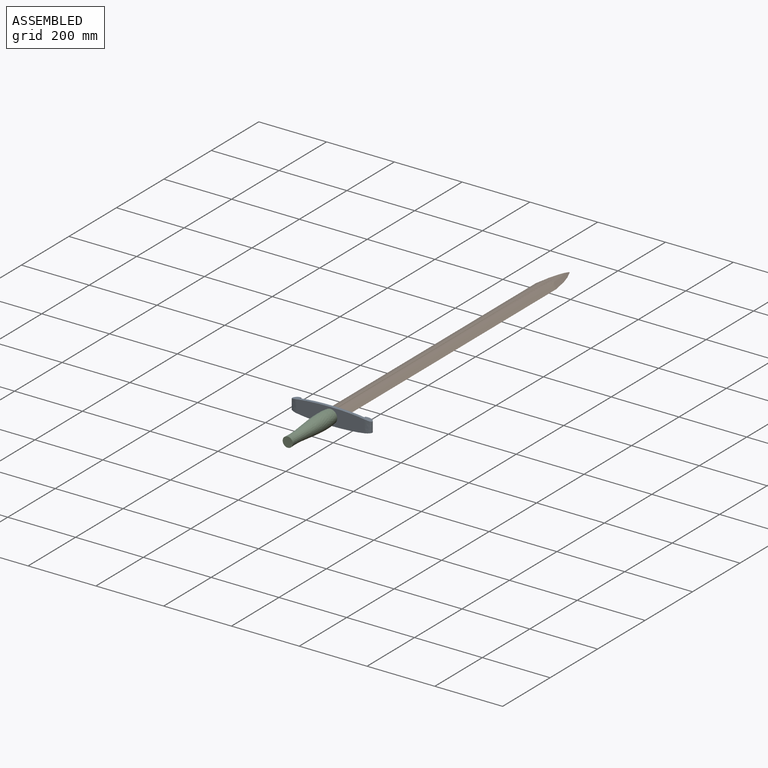
[diagram: assembled view]
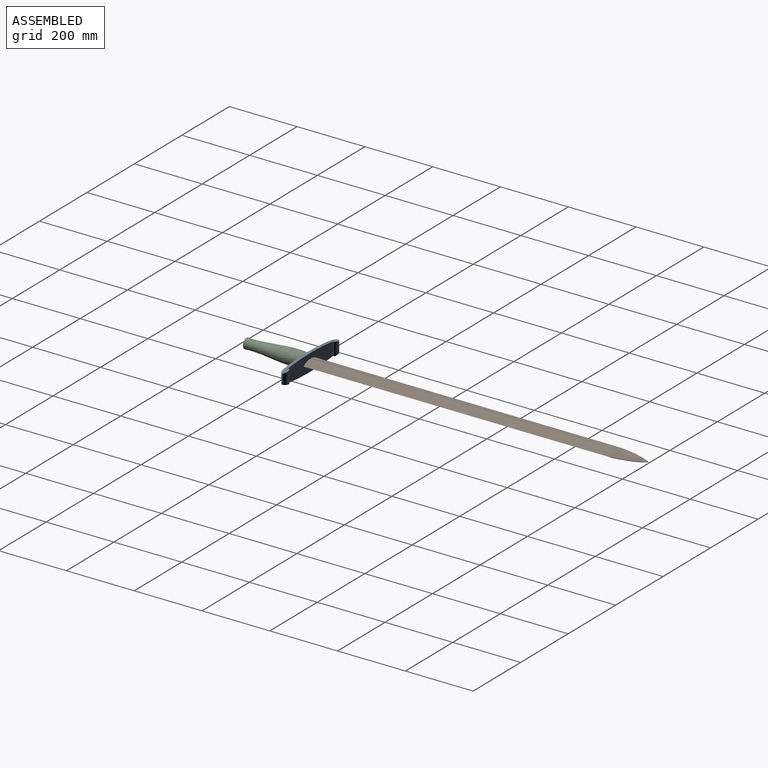
[diagram: assembled view, second angle]
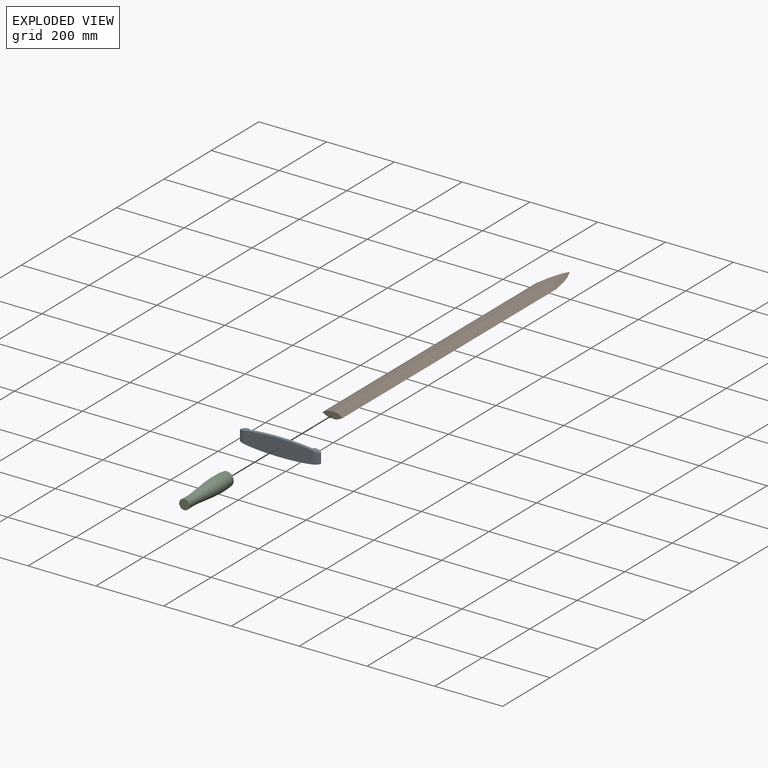
[diagram: exploded view]
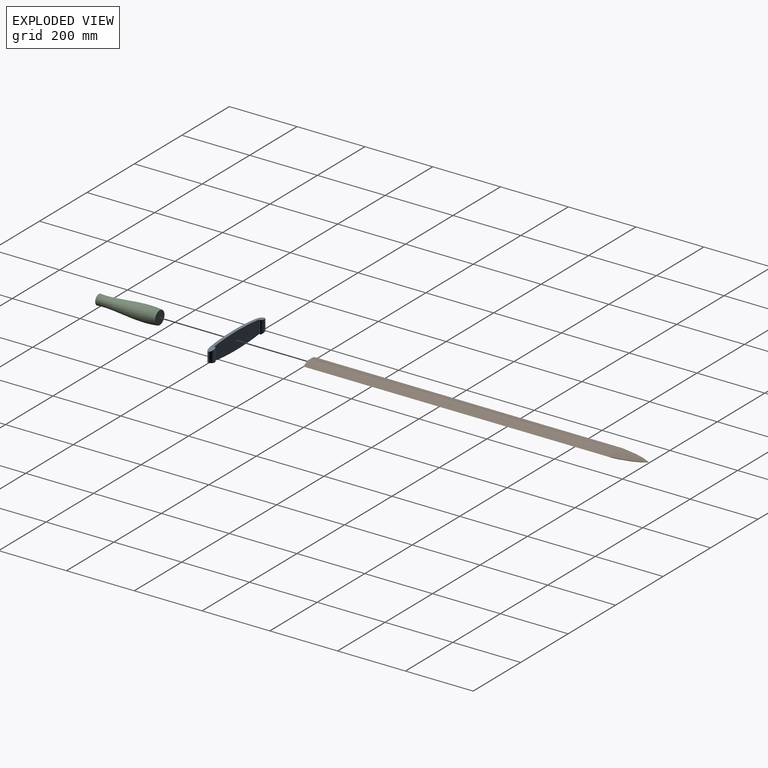
[diagram: exploded view, second angle]
ASSEMBLY  parts=3 mates=2
PART A: 8 faces, bbox 236.9x15.9x50 mm
  f0: plane 201.69x50mm, normal (0,-1,0), area 9192.5mm2, adj f1,f3,f4,f5,f6,f7
  f1: extruded ~38.87x24.64mm, area 1940.8mm2, adj f0,f2,f3,f4
  f2: plane 197.49x50mm, normal (0,1,0), area 9038mm2, adj f1,f3,f4,f5,f6,f7
  f3: extruded ~118.47x15.86mm, area 1155.6mm2, adj f0,f1,f2,f6
  f4: extruded ~118.47x15.86mm, area 1155.6mm2, adj f0,f1,f2,f7
  f5: extruded ~38.87x24.64mm, area 1940.8mm2, adj f0,f2,f6,f7
  f6: extruded ~118.47x15.86mm, area 1155.6mm2, adj f0,f2,f3,f5
  f7: extruded ~118.47x15.86mm, area 1155.6mm2, adj f0,f2,f4,f5
PART B: 27 faces, bbox 60x33.1x1001.1 mm
  f0: extruded ~915.91x27mm, area 26457.1mm2, adj f1,f2,f3,f7,f8,f20
  f1: extruded ~938.09x3mm, area 3451.7mm2, adj f0,f2,f5,f7
  f2: plane 60x20mm, normal (0,0,-1), area 800.6mm2, adj f0,f1,f4,f5,f8,f9,f11,f12
  f3: bspline ~104.37x54.14mm, area 1039.9mm2, adj f0,f10,f20,f22
  f4: extruded ~915.91x27mm, area 26457.1mm2, adj f2,f5,f6,f7,f11,f19
  f5: extruded ~938.09x3mm, area 3451.7mm2, adj f1,f2,f4,f7
  f6: bspline ~104.37x54.14mm, area 1039.9mm2, adj f4,f13,f19,f22
  f7: extruded ~77.1x21.82mm, area 786.1mm2, adj f0,f1,f4,f5,f19,f20
  f8: extruded ~915.91x27mm, area 26457.1mm2, adj f0,f2,f9,f10,f14,f26
  f9: extruded ~938.09x3mm, area 3451.7mm2, adj f2,f8,f12,f14
  f10: bspline ~104.37x54.14mm, area 1039.9mm2, adj f3,f8,f24,f26
  f11: extruded ~915.91x27mm, area 26457.1mm2, adj f2,f4,f12,f13,f14,f23
  f12: extruded ~938.09x3mm, area 3451.7mm2, adj f2,f9,f11,f14
  f13: bspline ~104.37x54.14mm, area 1039.9mm2, adj f6,f11,f23,f24
  f14: extruded ~77.1x21.82mm, area 786.1mm2, adj f8,f9,f11,f12,f23,f26
  f15: bspline ~2.37x0.62mm, area 0.8mm2, adj f16,f23,f24,f25
  f16: bspline ~3.11x0.72mm, area 1.1mm2, adj f15,f23,f25,f26
  f17: bspline ~3.11x0.72mm, area 1.1mm2, adj f18,f19,f20,f21
  f18: bspline ~2.37x0.63mm, area 0.8mm2, adj f17,f19,f21,f22
  f19: bspline ~76.76x15.65mm, area 167mm2, adj f4,f6,f7,f17,f18
  f20: bspline ~76.76x15.65mm, area 167mm2, adj f0,f3,f7,f17,f21
  f21: bspline ~2.37x0.62mm, area 0.8mm2, adj f17,f18,f20,f22
  f22: bspline ~24.64x7.55mm, area 96.6mm2, adj f3,f6,f18,f21,f24
  f23: bspline ~76.76x15.65mm, area 167mm2, adj f11,f13,f14,f15,f16
  f24: bspline ~24.64x7.55mm, area 96.6mm2, adj f10,f13,f15,f22,f25
  f25: bspline ~2.37x0.63mm, area 0.8mm2, adj f15,f16,f24,f26
  f26: bspline ~76.76x15.65mm, area 167mm2, adj f8,f10,f14,f16,f25
PART C: 3 faces, bbox 44.7x180x44.7 mm
  f0: plane 30x30mm, normal (0,-1,0), area 706.9mm2, adj f1
  f1: revolved ~180x44.7mm, area 21202mm2, adj f0,f2
  f2: plane 40x40mm, normal (0,1,0), area 1256.6mm2, adj f1
PLACE A t=(-38.85,43.92,-35.47)mm
PLACE B rot(axis=(-1,0,0),90deg) t=(-38.85,52.69,-35.47)mm
PLACE C t=(-38.85,43.92,-35.47)mm
MATE fastened B.f2 <-> A.f2  axis (0,-1,0) through (-38.85,52.69,-35.47)mm
MATE fastened A.f0 <-> C.f2  axis (0,-1,0) through (-38.85,43.92,-35.47)mm
